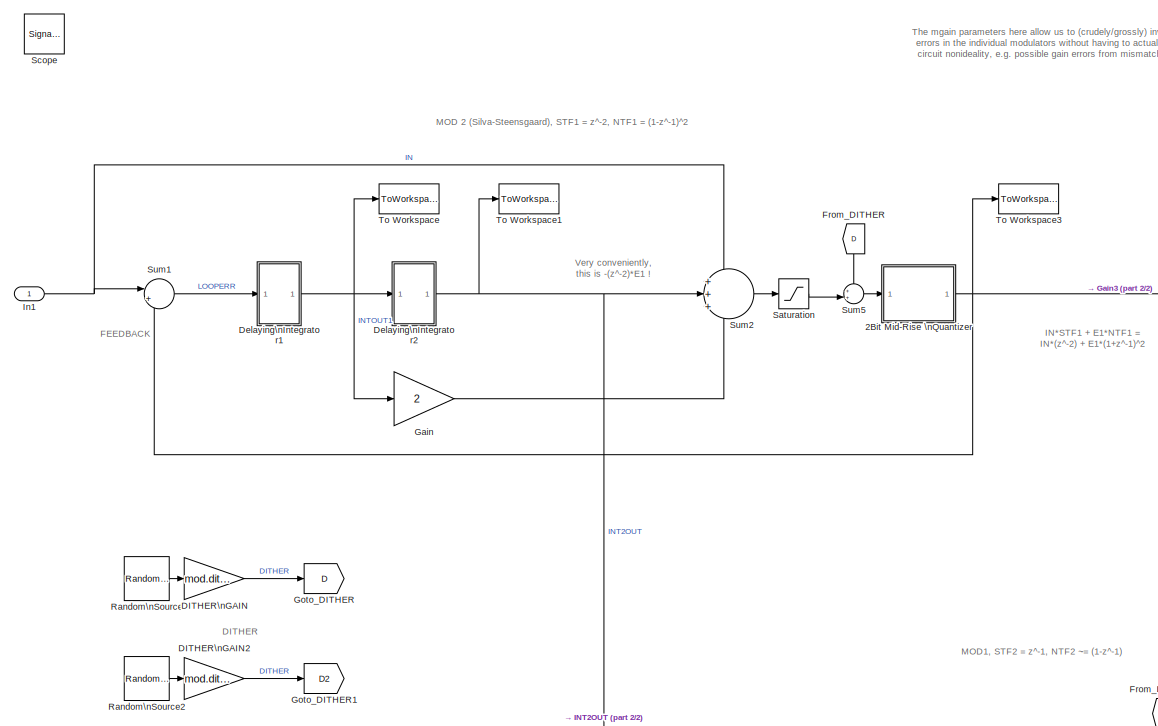
[diagram: root canvas - part 1/2, left side, full height]
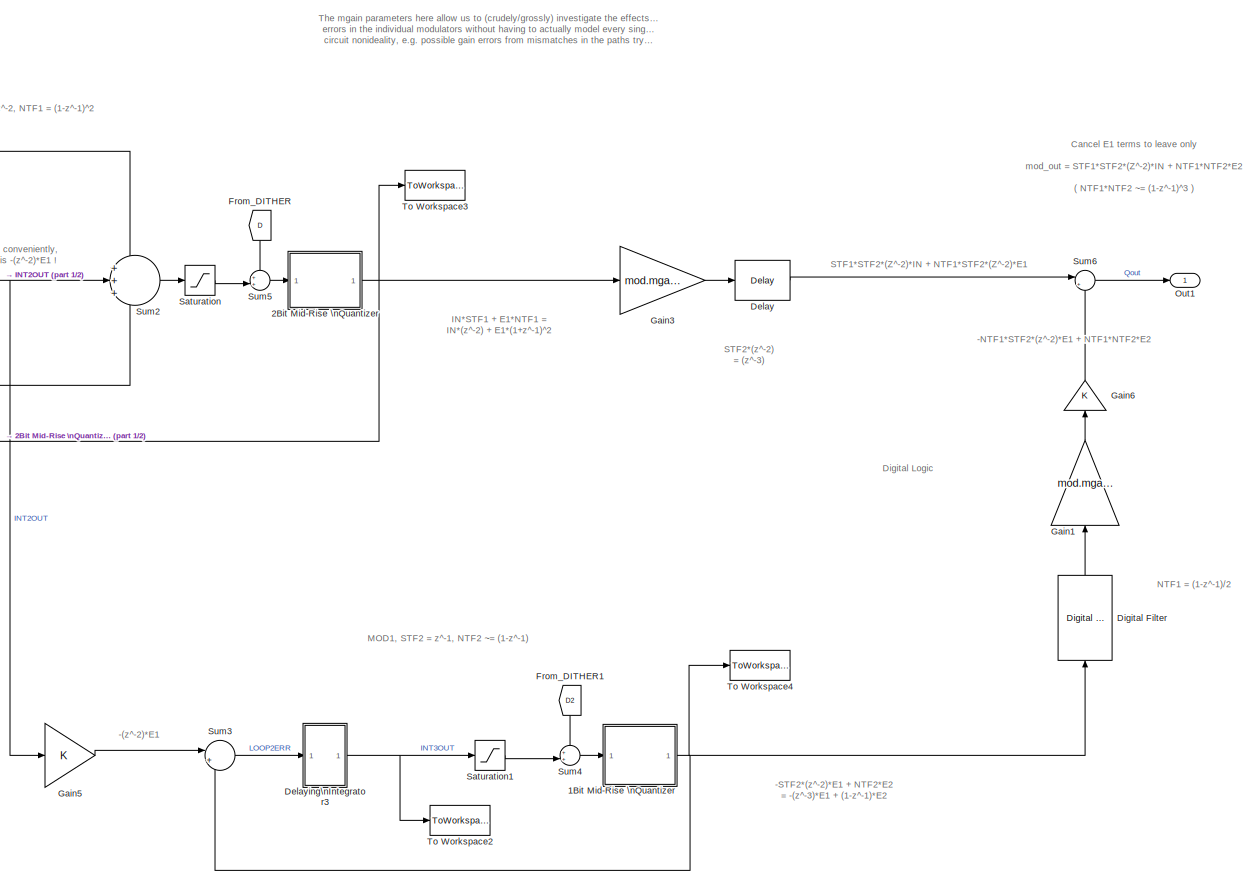
[diagram: root canvas - part 2/2, center side, full height]
MODEL mod3_2plus1MASH
KIND model
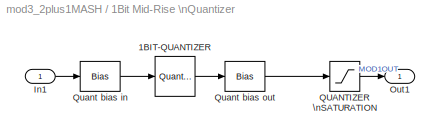
BLOCK [SubSystem] 1Bit Mid-Rise \nQuantizer
  FunctionWithSeparateData = off
  MaskHideContents = off
  MinAlgLoopOccurrences = off
  Opaque = off
  Ports = [1, 1]
  PropExecContextOutsideSubsystem = off
  RTWSystemCode = Auto
  RequestExecContextInheritance = off
  SID = 203
BLOCK [Quantizer] 1Bit Mid-Rise \nQuantizer/1BIT-QUANTIZER
  AttributesFormatString = step = 2
  LinearizeAsGain = off
  QuantizationInterval = 2
  SID = 205
  SampleTime = 1/Fs
BLOCK [Inport] 1Bit Mid-Rise \nQuantizer/In1
  IconDisplay = Port number
  SID = 204
BLOCK [Outport] 1Bit Mid-Rise \nQuantizer/Out1
  IconDisplay = Port number
  SID = 209
BLOCK [Saturate] 1Bit Mid-Rise \nQuantizer/QUANTIZER \nSATURATION
  AttributesFormatString = Limit quantizer\\noutput
  InputPortMap = u0
  LowerLimit = -(mod.qsatout3)
  Ports = [1, 1]
  SID = 206
  UpperLimit = mod.qsatout3
BLOCK [Bias] 1Bit Mid-Rise \nQuantizer/Quant bias in
  AttributesFormatString = Need offset to give\\nMID-RISE quantiser
  Bias = 1
  SID = 207
  SaturateOnIntegerOverflow = off
BLOCK [Bias] 1Bit Mid-Rise \nQuantizer/Quant bias out
  AttributesFormatString = Shift outputs to\\n..., -2, 1, 1, ...
  Bias = -1
  SID = 208
  SaturateOnIntegerOverflow = off
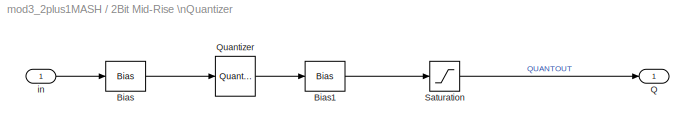
BLOCK [SubSystem] 2Bit Mid-Rise \nQuantizer
  FunctionWithSeparateData = off
  MaskHideContents = off
  MinAlgLoopOccurrences = off
  Opaque = off
  Ports = [1, 1]
  PropExecContextOutsideSubsystem = off
  RTWSystemCode = Auto
  RequestExecContextInheritance = off
  SID = 188
BLOCK [Bias] 2Bit Mid-Rise \nQuantizer/Bias
  AttributesFormatString = Need offset to give\\nMID-RISE quantiser
  Bias = 1/3
  SID = 190
  SaturateOnIntegerOverflow = off
BLOCK [Bias] 2Bit Mid-Rise \nQuantizer/Bias1
  Bias = -1/3
  SID = 191
  SaturateOnIntegerOverflow = off
BLOCK [Outport] 2Bit Mid-Rise \nQuantizer/Q
  IconDisplay = Port number
  SID = 194
BLOCK [Quantizer] 2Bit Mid-Rise \nQuantizer/Quantizer
  LinearizeAsGain = off
  QuantizationInterval = 2/3
  SID = 192
  SampleTime = 1/Fs
BLOCK [Saturate] 2Bit Mid-Rise \nQuantizer/Saturation
  InputPortMap = u0
  LowerLimit = -(mod.qsatout1)
  Ports = [1, 1]
  SID = 193
  UpperLimit = mod.qsatout1
BLOCK [Inport] 2Bit Mid-Rise \nQuantizer/in
  IconDisplay = Port number
  SID = 189
BLOCK [Gain] DITHER\nGAIN
  Gain = mod.dither
  OutDataTypeStr = Inherit: Inherit via internal rule
  ParamDataTypeStr = Inherit: Inherit via internal rule
  SID = 156
  SampleTime = 1/Fs
  SaturateOnIntegerOverflow = off
BLOCK [Gain] DITHER\nGAIN2
  Gain = mod.dither1
  OutDataTypeStr = Inherit: Inherit via internal rule
  ParamDataTypeStr = Inherit: Inherit via internal rule
  SID = 160
  SampleTime = 1/Fs
  SaturateOnIntegerOverflow = off
BLOCK [Reference] Delay  REF=dspsigops/Delay
  InputProcessing = Inherited (this choice will be removed - see release notes)
  Ports = [1, 1]
  SID = 120
  SourceBlock = dspsigops/Delay
  SourceType = Delay
  UserData = DataTag0
  UserDataPersistent = on
  delay = 3
  dif_ic_for_ch = off
  dif_ic_for_dly = off
  dly_unit = Samples
  ic = 0
  ic_detail = off
  reset_popup = None
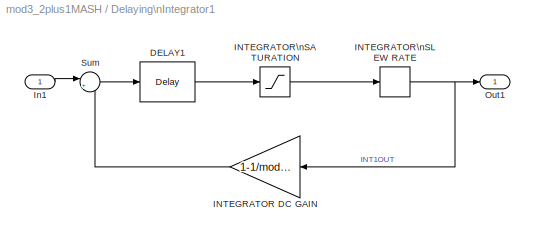
BLOCK [SubSystem] Delaying\nIntegrator1
  FunctionWithSeparateData = off
  MaskHideContents = off
  MinAlgLoopOccurrences = off
  Opaque = off
  Ports = [1, 1]
  PropExecContextOutsideSubsystem = off
  RTWSystemCode = Auto
  RequestExecContextInheritance = off
  SID = 164
BLOCK [Reference] Delaying\nIntegrator1/DELAY1  REF=dspsigops/Delay
  InputProcessing = Inherited (this choice will be removed - see release notes)
  Ports = [1, 1]
  SID = 166
  SourceBlock = dspsigops/Delay
  SourceType = Delay
  UserData = DataTag1
  UserDataPersistent = on
  delay = 1
  dif_ic_for_ch = off
  dif_ic_for_dly = off
  dly_unit = Samples
  ic = 0
  ic_detail = off
  reset_popup = None
BLOCK [Gain] Delaying\nIntegrator1/INTEGRATOR DC GAIN
  AttributesFormatString = Integrator leakage\\n(model finite integrator dc/LF\\ngain in analog modulators)
  Gain = 1-1/mod.igain1
  OutDataTypeStr = Inherit: Inherit via internal rule
  ParamDataTypeStr = Inherit: Inherit via internal rule
  SID = 169
  SaturateOnIntegerOverflow = off
BLOCK [Saturate] Delaying\nIntegrator1/INTEGRATOR\nSATURATION
  AttributesFormatString = Real integrators will have\\noutput swing limits (analog\\nsignal headroom or digital\\naccumulator min/max values)
  InputPortMap = u0
  LowerLimit = -(mod.isat1)
  Ports = [1, 1]
  SID = 167
  UpperLimit = mod.isat1
BLOCK [RateLimiter] Delaying\nIntegrator1/INTEGRATOR\nSLEW RATE
  AttributesFormatString = ...and\\nmay suffer from\\npoor slew rate
  FallingSlewLimit = -(mod.isr1)
  RisingSlewLimit = mod.isr1
  SID = 168
  SampleTimeMode = inherited
BLOCK [Inport] Delaying\nIntegrator1/In1
  IconDisplay = Port number
  SID = 165
BLOCK [Outport] Delaying\nIntegrator1/Out1
  IconDisplay = Port number
  SID = 171
BLOCK [Sum] Delaying\nIntegrator1/Sum
  AttributesFormatString = Integrator\\nsummer
  IconShape = round
  InputSameDT = off
  Inputs = |++
  OutDataTypeStr = Inherit: Inherit via internal rule
  Ports = [2, 1]
  SID = 170
  SaturateOnIntegerOverflow = off
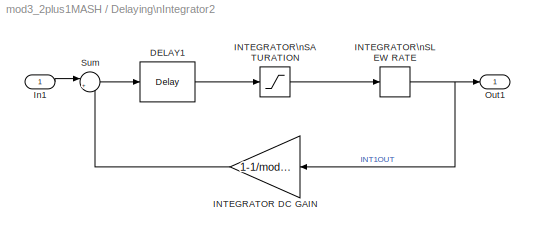
BLOCK [SubSystem] Delaying\nIntegrator2
  FunctionWithSeparateData = off
  MaskHideContents = off
  MinAlgLoopOccurrences = off
  Opaque = off
  Ports = [1, 1]
  PropExecContextOutsideSubsystem = off
  RTWSystemCode = Auto
  RequestExecContextInheritance = off
  SID = 172
BLOCK [Reference] Delaying\nIntegrator2/DELAY1  REF=dspsigops/Delay
  InputProcessing = Inherited (this choice will be removed - see release notes)
  Ports = [1, 1]
  SID = 174
  SourceBlock = dspsigops/Delay
  SourceType = Delay
  UserData = DataTag2
  UserDataPersistent = on
  delay = 1
  dif_ic_for_ch = off
  dif_ic_for_dly = off
  dly_unit = Samples
  ic = 0
  ic_detail = off
  reset_popup = None
BLOCK [Gain] Delaying\nIntegrator2/INTEGRATOR DC GAIN
  AttributesFormatString = Integrator leakage\\n(model finite integrator dc/LF\\ngain in analog modulators)
  Gain = 1-1/mod.igain2
  OutDataTypeStr = Inherit: Inherit via internal rule
  ParamDataTypeStr = Inherit: Inherit via internal rule
  SID = 177
  SaturateOnIntegerOverflow = off
BLOCK [Saturate] Delaying\nIntegrator2/INTEGRATOR\nSATURATION
  AttributesFormatString = Real integrators will have\\noutput swing limits (analog\\nsignal headroom or digital\\naccumulator min/max values)
  InputPortMap = u0
  LowerLimit = -(mod.isat2)
  Ports = [1, 1]
  SID = 175
  UpperLimit = mod.isat2
BLOCK [RateLimiter] Delaying\nIntegrator2/INTEGRATOR\nSLEW RATE
  AttributesFormatString = ...and\\nmay suffer from\\npoor slew rate
  FallingSlewLimit = -(mod.isr2)
  RisingSlewLimit = mod.isr2
  SID = 176
  SampleTimeMode = inherited
BLOCK [Inport] Delaying\nIntegrator2/In1
  IconDisplay = Port number
  SID = 173
BLOCK [Outport] Delaying\nIntegrator2/Out1
  IconDisplay = Port number
  SID = 179
BLOCK [Sum] Delaying\nIntegrator2/Sum
  AttributesFormatString = Integrator\\nsummer
  IconShape = round
  InputSameDT = off
  Inputs = |++
  OutDataTypeStr = Inherit: Inherit via internal rule
  Ports = [2, 1]
  SID = 178
  SaturateOnIntegerOverflow = off
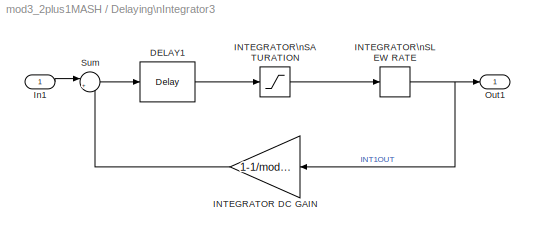
BLOCK [SubSystem] Delaying\nIntegrator3
  FunctionWithSeparateData = off
  MaskHideContents = off
  MinAlgLoopOccurrences = off
  Opaque = off
  Ports = [1, 1]
  PropExecContextOutsideSubsystem = off
  RTWSystemCode = Auto
  RequestExecContextInheritance = off
  SID = 195
BLOCK [Reference] Delaying\nIntegrator3/DELAY1  REF=dspsigops/Delay
  InputProcessing = Inherited (this choice will be removed - see release notes)
  Ports = [1, 1]
  SID = 197
  SourceBlock = dspsigops/Delay
  SourceType = Delay
  UserData = DataTag3
  UserDataPersistent = on
  delay = 1
  dif_ic_for_ch = off
  dif_ic_for_dly = off
  dly_unit = Samples
  ic = 0
  ic_detail = off
  reset_popup = None
BLOCK [Gain] Delaying\nIntegrator3/INTEGRATOR DC GAIN
  AttributesFormatString = Integrator leakage\\n(model finite integrator dc/LF\\ngain in analog modulators)
  Gain = 1-1/mod.igain3
  OutDataTypeStr = Inherit: Inherit via internal rule
  ParamDataTypeStr = Inherit: Inherit via internal rule
  SID = 200
  SaturateOnIntegerOverflow = off
BLOCK [Saturate] Delaying\nIntegrator3/INTEGRATOR\nSATURATION
  AttributesFormatString = Real integrators will have\\noutput swing limits (analog\\nsignal headroom or digital\\naccumulator min/max values)
  InputPortMap = u0
  LowerLimit = -(mod.isat3)
  Ports = [1, 1]
  SID = 198
  UpperLimit = mod.isat3
BLOCK [RateLimiter] Delaying\nIntegrator3/INTEGRATOR\nSLEW RATE
  AttributesFormatString = ...and\\nmay suffer from\\npoor slew rate
  FallingSlewLimit = -(mod.isr3)
  RisingSlewLimit = mod.isr3
  SID = 199
  SampleTimeMode = inherited
BLOCK [Inport] Delaying\nIntegrator3/In1
  IconDisplay = Port number
  SID = 196
BLOCK [Outport] Delaying\nIntegrator3/Out1
  IconDisplay = Port number
  SID = 202
BLOCK [Sum] Delaying\nIntegrator3/Sum
  AttributesFormatString = Integrator\\nsummer
  IconShape = round
  InputSameDT = off
  Inputs = |++
  OutDataTypeStr = Inherit: Inherit via internal rule
  Ports = [2, 1]
  SID = 201
  SaturateOnIntegerOverflow = off
BLOCK [Reference] Digital Filter  REF=dsparch4/Digital Filter
  AllPoleFiltStruct = Direct form
  BiQuadCoeffs = [1 0.3 0.4 1 0.1 0.2]
  CoeffSource = Specify via dialog
  DenCoeffs = [1 0.1]
  FIRFiltStruct = Direct form
  FiltPerSampPopup = One filter per frame
  FilterSource = Specify via dialog
  IC = 0
  ICden = 0
  ICnum = 0
  IIRFiltStruct = Direct form II transposed
  InputProcessing = Inherited (this choice will be removed - see release notes)
  LatticeCoeffs = [0.2 0.4]
  LockScale = off
  NumCoeffs = [1 -2 1]
  Ports = [1, 1]
  SID = 119
  ScaleValues = 1
  SourceBlock = dsparch4/Digital Filter
  SourceType = Digital Filter
  TypePopup = FIR (all zeros)
  UserData = DataTag4
  UserDataPersistent = on
  accumFracLength = 30
  accumMode = Same as product output
  accumWordLength = 32
  additionalParams = off
  allowOverrides = on
  denIgnore = on
  dfiltObjectName = dfilt.dffir([1 2 1])
  firstCoeffFracLength = 15
  firstCoeffMode = Same word length as input
  firstCoeffWordLength = 16
  memoryFracLength = 15
  memoryMode = Same as accumulator
  memoryWordLength = 16
  multiplicandFracLength = 30
  multiplicandMode = Same as output
  multiplicandWordLength = 32
  outputFracLength = 15
  outputMode = Same as accumulator
  outputWordLength = 16
  overflowMode = off
  prodOutputFracLength = 30
  prodOutputMode = Same as input
  prodOutputWordLength = 32
  roundingMode = Floor
  scaleValueFracLength = 14
  secondCoeffFracLength = 15
  secondCoeffMode = Same as numerator
  secondCoeffWordLength = 16
  showAcc = off
  showCoeff = off
  showMem = off
  showMpy = off
  showOut = off
  stageIOMode = Same as input
  stageIOWordLength = 16
  stageInFracLength = 15
  stageOutFracLength = 15
  tapSumFracLength = 30
  tapSumMode = Same as input
  tapSumWordLength = 32
  thirdCoeffFracLength = 15
  thirdCoeffMode = Same as input
  thirdCoeffWordLength = 16
BLOCK [From] From_DITHER
  GotoTag = D
  SID = 131
BLOCK [From] From_DITHER1
  GotoTag = D2
  SID = 213
BLOCK [Gain] Gain
  Gain = 2
  OutDataTypeStr = Inherit: Inherit via internal rule
  ParamDataTypeStr = Inherit: Inherit via internal rule
  SID = 77
  SaturateOnIntegerOverflow = off
BLOCK [Gain] Gain1
  Gain = mod.mgain2
  OutDataTypeStr = Inherit: Inherit via internal rule
  ParamDataTypeStr = Inherit: Inherit via internal rule
  SID = 221
  SaturateOnIntegerOverflow = off
BLOCK [Gain] Gain3
  Gain = mod.mgain1
  OutDataTypeStr = Inherit: Inherit via internal rule
  ParamDataTypeStr = Inherit: Inherit via internal rule
  SID = 142
  SaturateOnIntegerOverflow = off
BLOCK [Gain] Gain5
  AttributesFormatString = Option to scale input\\nfor saturation control...
  OutDataTypeStr = Inherit: Inherit via internal rule
  ParamDataTypeStr = Inherit: Inherit via internal rule
  SID = 127
  SaturateOnIntegerOverflow = off
BLOCK [Gain] Gain6
  AttributesFormatString = Option to un-scale input\\npost saturation control...
  OutDataTypeStr = Inherit: Inherit via internal rule
  ParamDataTypeStr = Inherit: Inherit via internal rule
  SID = 134
  SaturateOnIntegerOverflow = off
BLOCK [Goto] Goto_DITHER
  GotoTag = D
  SID = 157
BLOCK [Goto] Goto_DITHER1
  GotoTag = D2
  SID = 161
BLOCK [Inport] In1
  IconDisplay = Port number
  SID = 73
BLOCK [Outport] Out1
  IconDisplay = Port number
  SID = 74
BLOCK [Reference] Random\nSource  REF=dspsrcs4/Random\nSource
  CltLength = 12
  DataType = Double
  IsInherit = off
  MaxVal = 1
  MeanVal = 0
  MinVal = -1
  NormMethod = Ziggurat
  OutComplex = Real
  Ports = [0, 1]
  RepMode = Not repeatable
  SID = 158
  SampFrame = 1
  SampMode = Discrete
  SampTime = 1/Fs
  SourceBlock = dspsrcs4/Random\nSource
  SourceType = Random Source
  SrcType = Uniform
  UserData = DataTag5
  UserDataPersistent = on
  VarVal = 1
  rawSeed = 1
BLOCK [Reference] Random\nSource2  REF=dspsrcs4/Random\nSource
  CltLength = 12
  DataType = Double
  IsInherit = off
  MaxVal = 1
  MeanVal = 0
  MinVal = -1
  NormMethod = Ziggurat
  OutComplex = Real
  Ports = [0, 1]
  RepMode = Not repeatable
  SID = 162
  SampFrame = 1
  SampMode = Discrete
  SampTime = 1/Fs
  SourceBlock = dspsrcs4/Random\nSource
  SourceType = Random Source
  SrcType = Uniform
  UserData = DataTag6
  UserDataPersistent = on
  VarVal = 1
  rawSeed = 1
BLOCK [Saturate] Saturation
  InputPortMap = u0
  LowerLimit = -(mod.qsatin1)
  Ports = [1, 1]
  SID = 135
  UpperLimit = mod.qsatin1
BLOCK [Saturate] Saturation1
  InputPortMap = u0
  LowerLimit = -(mod.qsatin2)
  Ports = [1, 1]
  SID = 136
  UpperLimit = mod.qsatin2
BLOCK [SignalViewerScope] Scope
  IOType = viewer
  MaxDataPoints = 7500
  NumInputPorts = 4
  Ports = []
  RefreshTime = 0.035000
  SID = 137
  ShowDataMarkers = off
  ShowLegends = off
  YMax = 5~5~5~5
  YMin = -5~-5~-5~-5
  ZoomMode = xonly
BLOCK [Sum] Sum1
  IconShape = round
  InputSameDT = off
  Inputs = |+-
  OutDataTypeStr = Inherit: Inherit via internal rule
  Ports = [2, 1]
  SID = 7
  SampleTime = 1/Fs
  SaturateOnIntegerOverflow = off
BLOCK [Sum] Sum2
  IconShape = round
  InputSameDT = off
  Inputs = +++
  OutDataTypeStr = Inherit: Inherit via internal rule
  Ports = [3, 1]
  SID = 30
  SaturateOnIntegerOverflow = off
BLOCK [Sum] Sum3
  IconShape = round
  InputSameDT = off
  Inputs = |+-
  OutDataTypeStr = Inherit: Inherit via internal rule
  Ports = [2, 1]
  SID = 212
  SaturateOnIntegerOverflow = off
BLOCK [Sum] Sum4
  IconShape = round
  InputSameDT = off
  Inputs = ++|
  OutDataTypeStr = Inherit: Inherit via internal rule
  Ports = [2, 1]
  SID = 214
  SaturateOnIntegerOverflow = off
BLOCK [Sum] Sum5
  IconShape = round
  InputSameDT = off
  Inputs = ++|
  OutDataTypeStr = Inherit: Inherit via internal rule
  Ports = [2, 1]
  SID = 82
  SaturateOnIntegerOverflow = off
BLOCK [Sum] Sum6
  IconShape = round
  InputSameDT = off
  Inputs = |++
  OutDataTypeStr = Inherit: Inherit via internal rule
  Ports = [2, 1]
  SID = 112
  SaturateOnIntegerOverflow = off
BLOCK [ToWorkspace] To Workspace
  MaxDataPoints = inf
  Ports = [1]
  SID = 138
  SampleTime = -1
  VariableName = INT1OUT
BLOCK [ToWorkspace] To Workspace1
  MaxDataPoints = inf
  Ports = [1]
  SID = 139
  SampleTime = -1
  VariableName = INT2OUT
BLOCK [ToWorkspace] To Workspace2
  MaxDataPoints = inf
  Ports = [1]
  SID = 140
  SampleTime = -1
  VariableName = INT3OUT
BLOCK [ToWorkspace] To Workspace3
  MaxDataPoints = inf
  Ports = [1]
  SID = 143
  SampleTime = -1
  VariableName = Qout1
BLOCK [ToWorkspace] To Workspace4
  MaxDataPoints = inf
  Ports = [1]
  SID = 219
  SampleTime = -1
  VariableName = Qout2
ANNOTATION (root): DITHER \n\n\n\n\n\n\n\n\n\n
ANNOTATION (root): -(z^-2)*E1
ANNOTATION (root): -NTF1*STF2*(z^-2)*E1 + NTF1*NTF2*E2
ANNOTATION (root): -STF2*(z^-2)*E1 + NTF2*E2\n= -(z^-3)*E1 + (1-z^-1)*E2
ANNOTATION (root): Cancel E1 terms to leave only\n\nmod_out = STF1*STF2*(Z^-2)*IN + NTF1*NTF2*E2\n\n ( NTF1*NTF2 ~= (1-z^-1)^3 )
ANNOTATION (root): Digital Logic
ANNOTATION (root): FEEDBACK
ANNOTATION (root): IN*STF1 + E1*NTF1 = \nIN*(z^-2) + E1*(1+z^-1)^2
ANNOTATION (root): MOD 2 (Silva-Steensgaard), STF1 = z^-2, NTF1 = (1-z^-1)^2
ANNOTATION (root): MOD1, STF2 = z^-1, NTF2 ~= (1-z^-1)
ANNOTATION (root): NTF1 = (1-z^-1)/2
ANNOTATION (root): STF1*STF2*(Z^-2)*IN + NTF1*STF2*(Z^-2)*E1
ANNOTATION (root): STF2*(z^-2)\n= (z^-3)
ANNOTATION (root): The mgain parameters here allow us to (crudely/grossly) investigate the effects of signal path gain\nerrors in the individual modulators without having to actually model every single path and \ncircuit nonideality, e.g. possible gain errors from mismatches in the paths trying to compute E1, E2
ANNOTATION (root): Very conveniently,\nthis is -(z^-2)*E1 !
LINE 1Bit Mid-Rise \nQuantizer/1BIT-QUANTIZER:1 -> 1Bit Mid-Rise \nQuantizer/Quant bias out:1
LINE 1Bit Mid-Rise \nQuantizer/In1:1 -> 1Bit Mid-Rise \nQuantizer/Quant bias in:1
LINE 1Bit Mid-Rise \nQuantizer/QUANTIZER \nSATURATION:1 -> 1Bit Mid-Rise \nQuantizer/Out1:1
LINE 1Bit Mid-Rise \nQuantizer/Quant bias in:1 -> 1Bit Mid-Rise \nQuantizer/1BIT-QUANTIZER:1
LINE 1Bit Mid-Rise \nQuantizer/Quant bias out:1 -> 1Bit Mid-Rise \nQuantizer/QUANTIZER \nSATURATION:1
NET 1Bit Mid-Rise \nQuantizer:1 -> Digital Filter:1, Sum3:2, To Workspace4:1
LINE 2Bit Mid-Rise \nQuantizer/Bias1:1 -> 2Bit Mid-Rise \nQuantizer/Saturation:1
LINE 2Bit Mid-Rise \nQuantizer/Bias:1 -> 2Bit Mid-Rise \nQuantizer/Quantizer:1
LINE 2Bit Mid-Rise \nQuantizer/Quantizer:1 -> 2Bit Mid-Rise \nQuantizer/Bias1:1
LINE 2Bit Mid-Rise \nQuantizer/Saturation:1 -> 2Bit Mid-Rise \nQuantizer/Q:1
LINE 2Bit Mid-Rise \nQuantizer/in:1 -> 2Bit Mid-Rise \nQuantizer/Bias:1
NET 2Bit Mid-Rise \nQuantizer:1 -> Gain3:1, Sum1:2, To Workspace3:1
LINE DITHER\nGAIN2:1 -> Goto_DITHER1:1
LINE DITHER\nGAIN:1 -> Goto_DITHER:1
LINE Delay:1 -> Sum6:1
LINE Delaying\nIntegrator1/DELAY1:1 -> Delaying\nIntegrator1/INTEGRATOR\nSATURATION:1
LINE Delaying\nIntegrator1/INTEGRATOR DC GAIN:1 -> Delaying\nIntegrator1/Sum:2
LINE Delaying\nIntegrator1/INTEGRATOR\nSATURATION:1 -> Delaying\nIntegrator1/INTEGRATOR\nSLEW RATE:1
NET Delaying\nIntegrator1/INTEGRATOR\nSLEW RATE:1 -> Delaying\nIntegrator1/INTEGRATOR DC GAIN:1, Delaying\nIntegrator1/Out1:1
LINE Delaying\nIntegrator1/In1:1 -> Delaying\nIntegrator1/Sum:1
LINE Delaying\nIntegrator1/Sum:1 -> Delaying\nIntegrator1/DELAY1:1
NET Delaying\nIntegrator1:1 -> Delaying\nIntegrator2:1, Gain:1, To Workspace:1
LINE Delaying\nIntegrator2/DELAY1:1 -> Delaying\nIntegrator2/INTEGRATOR\nSATURATION:1
LINE Delaying\nIntegrator2/INTEGRATOR DC GAIN:1 -> Delaying\nIntegrator2/Sum:2
LINE Delaying\nIntegrator2/INTEGRATOR\nSATURATION:1 -> Delaying\nIntegrator2/INTEGRATOR\nSLEW RATE:1
NET Delaying\nIntegrator2/INTEGRATOR\nSLEW RATE:1 -> Delaying\nIntegrator2/INTEGRATOR DC GAIN:1, Delaying\nIntegrator2/Out1:1
LINE Delaying\nIntegrator2/In1:1 -> Delaying\nIntegrator2/Sum:1
LINE Delaying\nIntegrator2/Sum:1 -> Delaying\nIntegrator2/DELAY1:1
NET Delaying\nIntegrator2:1 -> Gain5:1, Sum2:2, To Workspace1:1
LINE Delaying\nIntegrator3/DELAY1:1 -> Delaying\nIntegrator3/INTEGRATOR\nSATURATION:1
LINE Delaying\nIntegrator3/INTEGRATOR DC GAIN:1 -> Delaying\nIntegrator3/Sum:2
LINE Delaying\nIntegrator3/INTEGRATOR\nSATURATION:1 -> Delaying\nIntegrator3/INTEGRATOR\nSLEW RATE:1
NET Delaying\nIntegrator3/INTEGRATOR\nSLEW RATE:1 -> Delaying\nIntegrator3/INTEGRATOR DC GAIN:1, Delaying\nIntegrator3/Out1:1
LINE Delaying\nIntegrator3/In1:1 -> Delaying\nIntegrator3/Sum:1
LINE Delaying\nIntegrator3/Sum:1 -> Delaying\nIntegrator3/DELAY1:1
NET Delaying\nIntegrator3:1 -> Saturation1:1, To Workspace2:1
LINE Digital Filter:1 -> Gain1:1
LINE From_DITHER1:1 -> Sum4:1
LINE From_DITHER:1 -> Sum5:1
LINE Gain1:1 -> Gain6:1
LINE Gain3:1 -> Delay:1
LINE Gain5:1 -> Sum3:1
LINE Gain6:1 -> Sum6:2
LINE Gain:1 -> Sum2:3
NET In1:1 -> Sum1:1, Sum2:1
LINE Random\nSource2:1 -> DITHER\nGAIN2:1
LINE Random\nSource:1 -> DITHER\nGAIN:1
LINE Saturation1:1 -> Sum4:2
LINE Saturation:1 -> Sum5:2
LINE Sum1:1 -> Delaying\nIntegrator1:1
LINE Sum2:1 -> Saturation:1
LINE Sum3:1 -> Delaying\nIntegrator3:1
LINE Sum4:1 -> 1Bit Mid-Rise \nQuantizer:1
LINE Sum5:1 -> 2Bit Mid-Rise \nQuantizer:1
LINE Sum6:1 -> Out1:1
note: NET lines group one-source signal fan-out (src -> all destinations, sorted); 1:1 wires keep LINE
